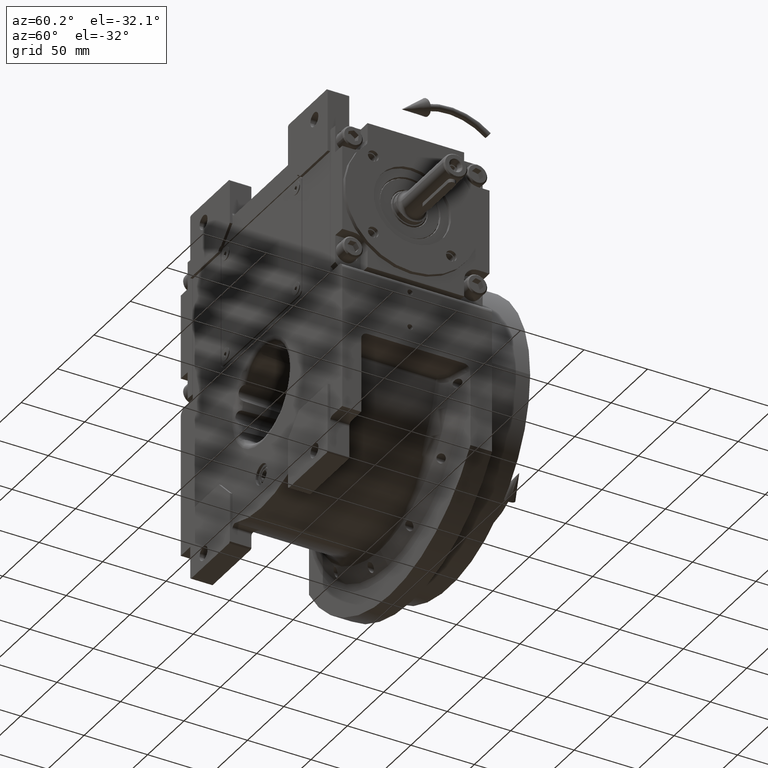
[diagram: clean part render]
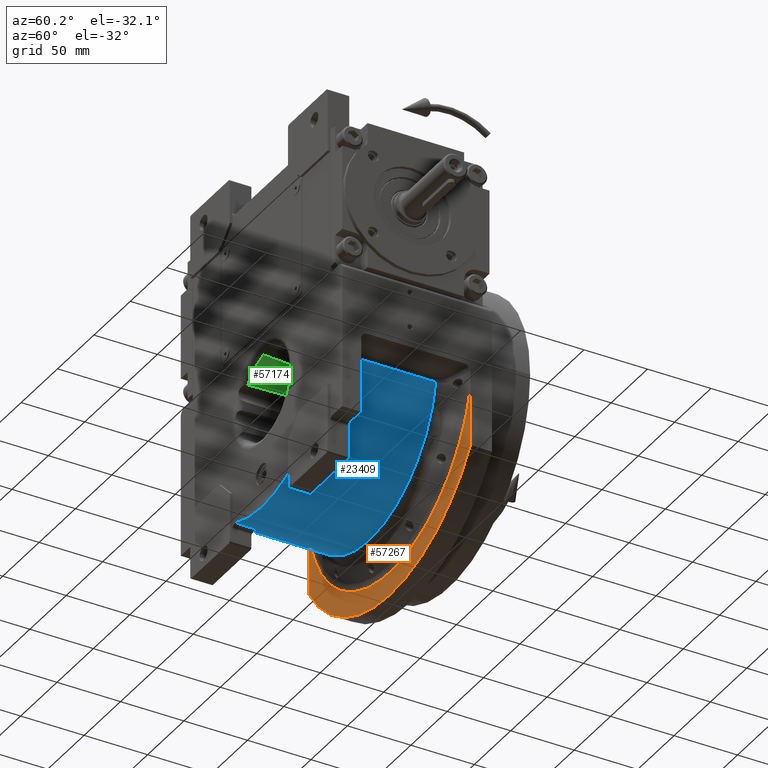
[diagram: same view with three faces highlighted in distinct colors, each labeled with its STEP entity id]
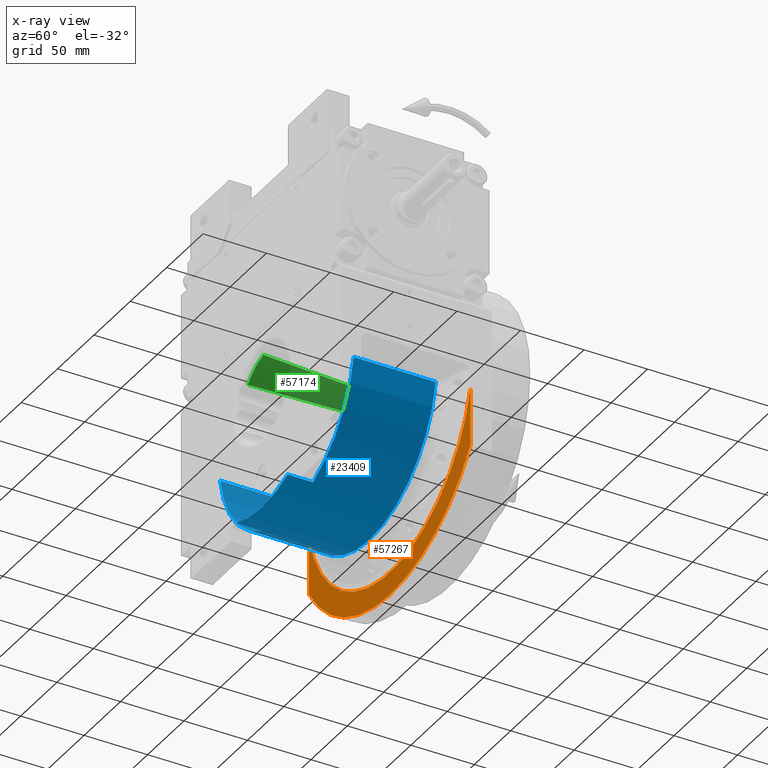
[diagram: x-ray of the same camera — body ghosted, the three highlighted faces saturated]
A machine part, auxiliary view with three faces highlighted in distinct colors.
The next image is the same camera in x-ray (body ghosted, the three faces saturated) — at least one of them is partly hidden behind the body in this view.
Their STEP definitions:

[orange] entity #57267 — the highlighted planar face has unit normal (0, -1, 0).
#757 = DIRECTION ( 'NONE',  ( -0.9747155648707268583, 0.000000000000000000, -0.2234492506112734644 ) ) ;
#4573 = CARTESIAN_POINT ( 'NONE',  ( 111.0000000000000000, 47.50000000000000000, -71.43528539874399996 ) ) ;
#5242 = DIRECTION ( 'NONE',  ( 6.180107079730629528E-16, 0.000000000000000000, 1.000000000000000000 ) ) ;
#8509 = DIRECTION ( 'NONE',  ( 0.000000000000000000, -1.000000000000000000, 0.000000000000000000 ) ) ;
#10319 = CIRCLE ( 'NONE', #40602, 131.9999999999999716 ) ;
#10460 = VERTEX_POINT ( 'NONE', #51704 ) ;
#12549 = EDGE_CURVE ( 'NONE', #67840, #21411, #16460, .T. ) ;
#14813 = AXIS2_PLACEMENT_3D ( 'NONE', #48863, #21506, #757 ) ;
#16460 = LINE ( 'NONE', #4573, #17616 ) ;
#17616 = VECTOR ( 'NONE', #5242, 1000.000000000000000 ) ;
#17643 = VERTEX_POINT ( 'NONE', #35643 ) ;
#19071 = CARTESIAN_POINT ( 'NONE',  ( 0.000000000000000000, 47.50000000000000000, 0.000000000000000000 ) ) ;
#21332 = EDGE_LOOP ( 'NONE', ( #30474, #64320, #32598, #53371 ) ) ;
#21411 = VERTEX_POINT ( 'NONE', #33863 ) ;
#21506 = DIRECTION ( 'NONE',  ( 0.000000000000000000, -1.000000000000000000, 0.000000000000000000 ) ) ;
#22954 = EDGE_CURVE ( 'NONE', #10460, #21411, #37253, .T. ) ;
#23275 = AXIS2_PLACEMENT_3D ( 'NONE', #19071, #8509, #26417 ) ;
#23319 = CARTESIAN_POINT ( 'NONE',  ( -111.0000000000000000, 47.50000000000000000, -71.43528539874399996 ) ) ;
#26417 = DIRECTION ( 'NONE',  ( 0.000000000000000000, 0.000000000000000000, 1.000000000000000000 ) ) ;
#30474 = ORIENTED_EDGE ( 'NONE', *, *, #66597, .F. ) ;
#31166 = DIRECTION ( 'NONE',  ( 0.8409090909090902732, 0.000000000000000000, -0.5411764045359401809 ) ) ;
#32598 = ORIENTED_EDGE ( 'NONE', *, *, #12549, .T. ) ;
#33159 = DIRECTION ( 'NONE',  ( 0.000000000000000000, 0.000000000000000000, 1.000000000000000000 ) ) ;
#33863 = CARTESIAN_POINT ( 'NONE',  ( 111.0000000000000000, 47.50000000000000000, -25.44626115736659955 ) ) ;
#35037 = VECTOR ( 'NONE', #33159, 1000.000000000000000 ) ;
#35643 = CARTESIAN_POINT ( 'NONE',  ( -111.0000000000000000, 47.50000000000000000, -71.43528539874399996 ) ) ;
#37253 = CIRCLE ( 'NONE', #14813, 113.8793756871230158 ) ;
#40602 = AXIS2_PLACEMENT_3D ( 'NONE', #46976, #57523, #31166 ) ;
#46976 = CARTESIAN_POINT ( 'NONE',  ( 0.000000000000000000, 47.50000000000000000, 4.263256414560599853E-14 ) ) ;
#48863 = CARTESIAN_POINT ( 'NONE',  ( -9.947598300641398816E-14, 47.50000000000000000, -5.684341886080798963E-14 ) ) ;
#49146 = EDGE_CURVE ( 'NONE', #67840, #17643, #10319, .T. ) ;
#51704 = CARTESIAN_POINT ( 'NONE',  ( -111.0000000000000000, 47.50000000000000000, -25.44626115736729588 ) ) ;
#52400 = FACE_OUTER_BOUND ( 'NONE', #21332, .T. ) ;
#53371 = ORIENTED_EDGE ( 'NONE', *, *, #22954, .F. ) ;
#55281 = LINE ( 'NONE', #23319, #35037 ) ;
#56331 = CARTESIAN_POINT ( 'NONE',  ( 111.0000000000000000, 47.50000000000000000, -71.43528539874399996 ) ) ;
#56639 = PLANE ( 'NONE',  #23275 ) ;
#57267 = ADVANCED_FACE ( 'NONE', ( #52400 ), #56639, .T. ) ;
#57523 = DIRECTION ( 'NONE',  ( 0.000000000000000000, 1.000000000000000000, 0.000000000000000000 ) ) ;
#64320 = ORIENTED_EDGE ( 'NONE', *, *, #49146, .F. ) ;
#66597 = EDGE_CURVE ( 'NONE', #17643, #10460, #55281, .T. ) ;
#67840 = VERTEX_POINT ( 'NONE', #56331 ) ;

[blue] entity #23409 — the highlighted cylindrical surface (partial cylindrical patch) has radius 93 mm, axis along (0, 1, 0).
#259 = CIRCLE ( 'NONE', #13764, 93.00000000000001421 ) ;
#941 = VERTEX_POINT ( 'NONE', #43659 ) ;
#1882 = LINE ( 'NONE', #17693, #52672 ) ;
#2418 = VERTEX_POINT ( 'NONE', #34862 ) ;
#2549 = EDGE_CURVE ( 'NONE', #6688, #941, #9221, .T. ) ;
#3184 = CARTESIAN_POINT ( 'NONE',  ( -5.684341886080798963E-14, -33.50000000000000000, -4.973799150320699408E-14 ) ) ;
#3324 = ORIENTED_EDGE ( 'NONE', *, *, #65439, .T. ) ;
#3439 = EDGE_CURVE ( 'NONE', #2418, #39345, #16285, .T. ) ;
#3520 = CIRCLE ( 'NONE', #58512, 93.00000000000001421 ) ;
#3624 = CIRCLE ( 'NONE', #13674, 93.00000000000001421 ) ;
#6688 = VERTEX_POINT ( 'NONE', #54867 ) ;
#9221 = LINE ( 'NONE', #61908, #56414 ) ;
#9292 = CARTESIAN_POINT ( 'NONE',  ( 1.421085471520200056E-14, -33.50000000000000000, 1.421085471520200056E-14 ) ) ;
#10553 = CARTESIAN_POINT ( 'NONE',  ( 1.421085471520200056E-14, 31.21878281274215183, 0.000000000000000000 ) ) ;
#10883 = CARTESIAN_POINT ( 'NONE',  ( -4.517455316885850268E-28, -53.50000000000000000, 0.000000000000000000 ) ) ;
#13087 = VECTOR ( 'NONE', #28237, 1000.000000000000000 ) ;
#13674 = AXIS2_PLACEMENT_3D ( 'NONE', #9292, #47543, #21200 ) ;
#13764 = AXIS2_PLACEMENT_3D ( 'NONE', #10553, #16160, #52709 ) ;
#15352 = ORIENTED_EDGE ( 'NONE', *, *, #21419, .T. ) ;
#16160 = DIRECTION ( 'NONE',  ( 5.743225055535190204E-15, 1.000000000000000000, 2.439003765979129920E-14 ) ) ;
#16285 = LINE ( 'NONE', #60171, #13087 ) ;
#17185 = DIRECTION ( 'NONE',  ( 0.000000000000000000, -1.000000000000000000, 0.000000000000000000 ) ) ;
#17693 = CARTESIAN_POINT ( 'NONE',  ( 91.75016228501930016, 31.21878281274199907, -15.19564808333685058 ) ) ;
#18283 = VERTEX_POINT ( 'NONE', #29425 ) ;
#19978 = EDGE_LOOP ( 'NONE', ( #29784, #47005, #3324, #42404, #37130, #15352, #39097, #36598 ) ) ;
#21200 = DIRECTION ( 'NONE',  ( 0.9865608847878558629, 0.000000000000000000, -0.1633940653959109757 ) ) ;
#21419 = EDGE_CURVE ( 'NONE', #18283, #35486, #1882, .T. ) ;
#22587 = LINE ( 'NONE', #49975, #49325 ) ;
#23409 = ADVANCED_FACE ( 'NONE', ( #43890 ), #38264, .T. ) ;
#25045 = VERTEX_POINT ( 'NONE', #35348 ) ;
#27870 = DIRECTION ( 'NONE',  ( 1.776356839400250070E-15, 1.000000000000000000, -7.105427357601000281E-16 ) ) ;
#28237 = DIRECTION ( 'NONE',  ( 0.000000000000000000, 1.000000000000000000, 0.000000000000000000 ) ) ;
#29425 = CARTESIAN_POINT ( 'NONE',  ( 91.75016228501930016, 31.21878281274259948, -15.19564808333685058 ) ) ;
#29439 = AXIS2_PLACEMENT_3D ( 'NONE', #10883, #58333, #42844 ) ;
#29784 = ORIENTED_EDGE ( 'NONE', *, *, #66735, .F. ) ;
#31876 = CARTESIAN_POINT ( 'NONE',  ( 91.75016228514499517, -33.50000000000000000, -15.19564808257825028 ) ) ;
#32997 = DIRECTION ( 'NONE',  ( -0.3854166666666672403, 0.000000000000000000, -0.9227426472508764022 ) ) ;
#33982 = CARTESIAN_POINT ( 'NONE',  ( -91.75030103113060420, 31.21878279875124917, -15.19503959111690072 ) ) ;
#34862 = CARTESIAN_POINT ( 'NONE',  ( -91.75016228508779648, -33.50000000000000000, -15.19564808292360070 ) ) ;
#35348 = CARTESIAN_POINT ( 'NONE',  ( -35.84375000000000000, -53.50000000000000000, -85.81506619433150718 ) ) ;
#35486 = VERTEX_POINT ( 'NONE', #31876 ) ;
#36598 = ORIENTED_EDGE ( 'NONE', *, *, #2549, .T. ) ;
#37130 = ORIENTED_EDGE ( 'NONE', *, *, #68493, .F. ) ;
#37910 = CARTESIAN_POINT ( 'NONE',  ( 1.421085471520200056E-14, -53.50000000000000000, -4.263256414560599853E-14 ) ) ;
#38264 = CYLINDRICAL_SURFACE ( 'NONE', #29439, 93.00000000000000000 ) ;
#38278 = AXIS2_PLACEMENT_3D ( 'NONE', #37910, #17185, #32997 ) ;
#39097 = ORIENTED_EDGE ( 'NONE', *, *, #40053, .T. ) ;
#39345 = VERTEX_POINT ( 'NONE', #33982 ) ;
#40053 = EDGE_CURVE ( 'NONE', #35486, #6688, #3624, .T. ) ;
#42404 = ORIENTED_EDGE ( 'NONE', *, *, #3439, .T. ) ;
#42844 = DIRECTION ( 'NONE',  ( 0.000000000000000000, 0.000000000000000000, 1.000000000000000000 ) ) ;
#43659 = CARTESIAN_POINT ( 'NONE',  ( 35.84375000000000000, -53.50000000000000000, -85.81506619433150718 ) ) ;
#43890 = FACE_OUTER_BOUND ( 'NONE', #19978, .T. ) ;
#44736 = DIRECTION ( 'NONE',  ( 0.000000000000000000, -1.000000000000000000, 0.000000000000000000 ) ) ;
#46367 = DIRECTION ( 'NONE',  ( -0.3854166666666659080, 0.000000000000000000, -0.9227426472508768462 ) ) ;
#47005 = ORIENTED_EDGE ( 'NONE', *, *, #63677, .T. ) ;
#47543 = DIRECTION ( 'NONE',  ( 0.000000000000000000, 1.000000000000000000, 0.000000000000000000 ) ) ;
#49325 = VECTOR ( 'NONE', #27870, 1000.000000000000000 ) ;
#49469 = CIRCLE ( 'NONE', #38278, 92.99999999999995737 ) ;
#49975 = CARTESIAN_POINT ( 'NONE',  ( -35.84375000000000000, -53.50000000000000000, -85.81506619433150718 ) ) ;
#50667 = CARTESIAN_POINT ( 'NONE',  ( -35.84375000000000000, -33.50000000000000000, -85.81506619433150718 ) ) ;
#52672 = VECTOR ( 'NONE', #44736, 1000.000000000000000 ) ;
#52709 = DIRECTION ( 'NONE',  ( 0.9865608847851539132, -1.678764654171103455E-15, -0.1633940654122239822 ) ) ;
#54867 = CARTESIAN_POINT ( 'NONE',  ( 35.84375000000000000, -33.50000000000000000, -85.81506619433150718 ) ) ;
#56414 = VECTOR ( 'NONE', #62611, 1000.000000000000000 ) ;
#57057 = VERTEX_POINT ( 'NONE', #50667 ) ;
#57280 = DIRECTION ( 'NONE',  ( 0.000000000000000000, 1.000000000000000000, 0.000000000000000000 ) ) ;
#58333 = DIRECTION ( 'NONE',  ( 0.000000000000000000, 1.000000000000000000, 0.000000000000000000 ) ) ;
#58512 = AXIS2_PLACEMENT_3D ( 'NONE', #3184, #57280, #46367 ) ;
#60171 = CARTESIAN_POINT ( 'NONE',  ( -91.75016228501930016, -33.50000000000000000, -15.19564808333695183 ) ) ;
#61908 = CARTESIAN_POINT ( 'NONE',  ( 35.84375000000000000, -33.50000000000000000, -85.81506619433150718 ) ) ;
#62611 = DIRECTION ( 'NONE',  ( 0.000000000000000000, -1.000000000000000000, 0.000000000000000000 ) ) ;
#63677 = EDGE_CURVE ( 'NONE', #25045, #57057, #22587, .T. ) ;
#65439 = EDGE_CURVE ( 'NONE', #57057, #2418, #3520, .T. ) ;
#66735 = EDGE_CURVE ( 'NONE', #25045, #941, #49469, .T. ) ;
#68493 = EDGE_CURVE ( 'NONE', #18283, #39345, #259, .T. ) ;

[green] entity #57174 — the highlighted conical surface has half-angle 2.224 deg.
#1051 = CARTESIAN_POINT ( 'NONE',  ( -25.17767317646472236, -8.134360110603740424, 22.45791745373316672 ) ) ;
#1730 = CARTESIAN_POINT ( 'NONE',  ( -25.76759777127056594, -20.19458487257341517, 22.49715182439925698 ) ) ;
#2086 = CARTESIAN_POINT ( 'NONE',  ( -24.92960939534346210, -2.830628602781669834, 22.42603774382786952 ) ) ;
#2889 = FACE_OUTER_BOUND ( 'NONE', #7322, .T. ) ;
#3512 = CARTESIAN_POINT ( 'NONE',  ( -7.015980686976826419, 0.6730493466164297889, 32.65091026506441096 ) ) ;
#3851 = CARTESIAN_POINT ( 'NONE',  ( -6.581892172300127797, -20.91873774729681301, 33.59604451296172556 ) ) ;
#4191 = CARTESIAN_POINT ( 'NONE',  ( -6.506885096314946715, -23.94214980743184285, 33.73025226889717487 ) ) ;
#4892 = CARTESIAN_POINT ( 'NONE',  ( -7.383397213329371489, 30.61457056865113557, 31.37676902628926001 ) ) ;
#5773 = CARTESIAN_POINT ( 'NONE',  ( -27.31593238095755183, -48.69402850002909844, 22.38019785351225011 ) ) ;
#6320 = AXIS2_PLACEMENT_3D ( 'NONE', #35925, #19735, #51004 ) ;
#6677 = CARTESIAN_POINT ( 'NONE',  ( -24.85035119903206535, -1.112472536648153820, 22.41432441925469021 ) ) ;
#7020 = CARTESIAN_POINT ( 'NONE',  ( -26.85700044216910598, -40.84851846064513836, 22.45959300183226404 ) ) ;
#7322 = EDGE_LOOP ( 'NONE', ( #61822, #41034, #61079, #34240 ) ) ;
#7699 = CARTESIAN_POINT ( 'NONE',  ( -24.85328262468540572, -1.176221860228127802, 22.41477066934625384 ) ) ;
#8675 = DIRECTION ( 'NONE',  ( 6.184490354042650607E-15, 1.000000000000000000, -1.077473843992298185E-14 ) ) ;
#9127 = CARTESIAN_POINT ( 'NONE',  ( -6.989352234522360874, -0.9257628673331992353, 32.72010995928752664 ) ) ;
#12292 = CARTESIAN_POINT ( 'NONE',  ( -27.31593238095755183, -48.69402850002909844, 22.38019785351225011 ) ) ;
#13611 = DIRECTION ( 'NONE',  ( -0.7234472233214667147, 1.185310840213647527E-14, 0.6903796890613598247 ) ) ;
#14384 = CARTESIAN_POINT ( 'NONE',  ( -6.614463825880844361, -19.55262967216677339, 33.53557136036147313 ) ) ;
#14601 = CARTESIAN_POINT ( 'NONE',  ( -22.86960190519749858, 46.61641710001750027, 21.82427154779684741 ) ) ;
#16981 = CARTESIAN_POINT ( 'NONE',  ( 1.065814103640149963E-14, -48.69402850002909844, 0.000000000000000000 ) ) ;
#17241 = CARTESIAN_POINT ( 'NONE',  ( -7.465572626883200336, 46.61641710001750027, 30.71779199823640027 ) ) ;
#18242 = CARTESIAN_POINT ( 'NONE',  ( -24.88848357391307076, -1.940545458994913597, 22.42005283000798954 ) ) ;
#19085 = VERTEX_POINT ( 'NONE', #5773 ) ;
#19553 = CARTESIAN_POINT ( 'NONE',  ( -5.329070518200749816E-15, 46.61641710001710237, 3.552713678800499352E-15 ) ) ;
#19630 = CARTESIAN_POINT ( 'NONE',  ( -6.717666623281026261, -15.03979163426634891, 33.33633980526321494 ) ) ;
#19735 = DIRECTION ( 'NONE',  ( 0.000000000000000000, -1.000000000000000000, 1.836909530733564901E-16 ) ) ;
#19996 = CARTESIAN_POINT ( 'NONE',  ( -6.020151598987471431, -40.89856345233415169, 34.49092710218018709 ) ) ;
#21589 = B_SPLINE_CURVE_WITH_KNOTS ( 'NONE', 3,
 ( #12292, #7020, #27742, #33722, #49846, #38964, #60755, #33008, #28435, #1730, #54782, #49160, #1051, #23148, #2086, #18242, #34057, #22801, #7699, #6677, #22464, #55138, #65329, #66032 ),
 .UNSPECIFIED., .F., .F.,
 ( 4, 2, 1, 2, 2, 1, 1, 1, 1, 1, 1, 1, 1, 1, 2, 2, 4 ),
 ( 0.000000000000000000, 0.2499999999999960032, 0.2812499999999955591, 0.2851562499999955591, 0.2890624999999955591, 0.2968749999999955036, 0.3124999999999956701, 0.3749999999999960032, 0.4374999999999963363, 0.4687499999999965028, 0.4843749999999965583, 0.4921874999999966138, 0.4960937499999966693, 0.4980468749999967248, 0.4990234374999966693, 0.4999999999999966693, 1.000000000000000000 ),
 .UNSPECIFIED. ) ;
#22235 = DIRECTION ( 'NONE',  ( 0.000000000000000000, 1.000000000000000000, 0.000000000000000000 ) ) ;
#22464 = CARTESIAN_POINT ( 'NONE',  ( -24.84883317504790412, -1.079452833632142061, 22.41409285190225376 ) ) ;
#22510 = VERTEX_POINT ( 'NONE', #14601 ) ;
#22801 = CARTESIAN_POINT ( 'NONE',  ( -24.85768018150244174, -1.271834121313870636, 22.41543876716729145 ) ) ;
#23148 = CARTESIAN_POINT ( 'NONE',  ( -25.01204819499932341, -4.605542411084015519, 22.43743319472509512 ) ) ;
#25989 = CARTESIAN_POINT ( 'NONE',  ( -6.605836467556223113, -19.91655888794579354, 33.55167512886922054 ) ) ;
#26882 = CIRCLE ( 'NONE', #40359, 35.31336033009884545 ) ;
#27742 = CARTESIAN_POINT ( 'NONE',  ( -26.42060736472807037, -32.92053605780803593, 22.49823645871132527 ) ) ;
#28435 = CARTESIAN_POINT ( 'NONE',  ( -25.80416658519532902, -20.91999557245248198, 22.49808085315071793 ) ) ;
#28835 = CONICAL_SURFACE ( 'NONE', #6320, 1.000000000000000000, 0.03881544608146950126 ) ;
#30543 = CARTESIAN_POINT ( 'NONE',  ( -6.988349161636569384, -0.9852262048118237692, 32.72268554647107663 ) ) ;
#30873 = VERTEX_POINT ( 'NONE', #64902 ) ;
#30876 = CARTESIAN_POINT ( 'NONE',  ( -6.991422968451028730, -0.8028076788874538572, 32.71478479598469136 ) ) ;
#31919 = CARTESIAN_POINT ( 'NONE',  ( -7.043924058001458377, 2.395844059239822244, 32.57645760541480939 ) ) ;
#32796 = DIRECTION ( 'NONE',  ( -0.7735296818432539911, 0.000000000000000000, 0.6337600739297750696 ) ) ;
#33008 = CARTESIAN_POINT ( 'NONE',  ( -25.82246390020075211, -21.28232574530120402, 22.49850229101428312 ) ) ;
#33722 = CARTESIAN_POINT ( 'NONE',  ( -25.95599512364559658, -23.90877444573143151, 22.50037177851915260 ) ) ;
#34057 = CARTESIAN_POINT ( 'NONE',  ( -24.86794407551523989, -1.494847327192414976, 22.41698871864194942 ) ) ;
#34240 = ORIENTED_EDGE ( 'NONE', *, *, #37513, .T. ) ;
#35820 = CARTESIAN_POINT ( 'NONE',  ( -6.600070150408666514, -20.15906628370672493, 33.56240810425131116 ) ) ;
#35925 = CARTESIAN_POINT ( 'NONE',  ( 0.000000000000000000, 834.8749999998768772, -1.415119829553997709E-13 ) ) ;
#37513 = EDGE_CURVE ( 'NONE', #19085, #22510, #21589, .T. ) ;
#38964 = CARTESIAN_POINT ( 'NONE',  ( -25.84112447787023825, -21.65130370048159492, 22.49889461834812820 ) ) ;
#40359 = AXIS2_PLACEMENT_3D ( 'NONE', #16981, #22235, #32796 ) ;
#41034 = ORIENTED_EDGE ( 'NONE', *, *, #43900, .T. ) ;
#41071 = CARTESIAN_POINT ( 'NONE',  ( -6.668683843327299243, -17.24455031828429341, 33.43349931018661181 ) ) ;
#41438 = CARTESIAN_POINT ( 'NONE',  ( -5.723853692384750502, -48.69402850002909844, 34.84639029672330679 ) ) ;
#41590 = AXIS2_PLACEMENT_3D ( 'NONE', #19553, #8675, #13611 ) ;
#42103 = CARTESIAN_POINT ( 'NONE',  ( -7.097539557566140189, 5.844536192231387872, 32.42777577455985494 ) ) ;
#42457 = CARTESIAN_POINT ( 'NONE',  ( -7.218778195337935522, 14.73565036317008570, 32.04721890751191893 ) ) ;
#43900 = EDGE_CURVE ( 'NONE', #45381, #30873, #57110, .T. ) ;
#45381 = VERTEX_POINT ( 'NONE', #17241 ) ;
#46339 = CARTESIAN_POINT ( 'NONE',  ( -7.001723833722601320, -0.1879601712271008751, 32.68816393540910781 ) ) ;
#46673 = CARTESIAN_POINT ( 'NONE',  ( -7.465572626883200336, 46.61641710001750027, 30.71779199823640027 ) ) ;
#47047 = CARTESIAN_POINT ( 'NONE',  ( -6.842704596624226809, -9.117395876313956649, 33.07622035125862681 ) ) ;
#47700 = EDGE_CURVE ( 'NONE', #22510, #45381, #62913, .T. ) ;
#49160 = CARTESIAN_POINT ( 'NONE',  ( -25.41640791755143880, -13.11549991824473516, 22.48053801942943863 ) ) ;
#49846 = CARTESIAN_POINT ( 'NONE',  ( -25.89832868074435268, -22.78085453470795585, 22.49999219110493343 ) ) ;
#51004 = DIRECTION ( 'NONE',  ( 0.000000000000000000, 0.000000000000000000, 1.000000000000000000 ) ) ;
#51960 = CARTESIAN_POINT ( 'NONE',  ( -6.597009251911162941, -20.28739144563655472, 33.56808874989616953 ) ) ;
#52287 = CARTESIAN_POINT ( 'NONE',  ( -6.918618852143947784, -5.111746348028315623, 32.90143907804457513 ) ) ;
#54782 = CARTESIAN_POINT ( 'NONE',  ( -25.63379664472327235, -17.52649174368558604, 22.49279951270645839 ) ) ;
#55138 = CARTESIAN_POINT ( 'NONE',  ( -24.12397273183305302, 14.69085707344197900, 22.30330539787410515 ) ) ;
#57110 = B_SPLINE_CURVE_WITH_KNOTS ( 'NONE', 3,
 ( #46673, #62509, #4892, #69144, #42457, #57251, #42103, #31919, #3512, #46339, #67777, #30876, #9127, #30543, #52287, #47047, #19630, #41071, #14384, #25989, #35820, #51960, #3851, #68127, #4191, #68486, #19996, #41438 ),
 .UNSPECIFIED., .F., .F.,
 ( 4, 2, 2, 1, 1, 1, 1, 1, 2, 2, 2, 1, 1, 2, 2, 1, 2, 4 ),
 ( 0.000000000000000000, 0.2500000000000021094, 0.3750000000000031641, 0.4375000000000036637, 0.4687500000000039413, 0.4843750000000041078, 0.4921875000000041633, 0.4960937500000041633, 0.4980468750000042188, 0.5000000000000042188, 0.6250000000000043299, 0.6875000000000044409, 0.6953125000000044409, 0.6992187500000044409, 0.7031250000000044409, 0.7187500000000043299, 0.7500000000000037748, 1.000000000000000000 ),
 .UNSPECIFIED. ) ;
#57174 = ADVANCED_FACE ( 'NONE', ( #2889 ), #28835, .F. ) ;
#57251 = CARTESIAN_POINT ( 'NONE',  ( -7.139636768700242442, 8.805876948072151933, 32.30073330044628221 ) ) ;
#60755 = CARTESIAN_POINT ( 'NONE',  ( -25.82842384740889230, -21.40025213427811934, 22.49863301333086696 ) ) ;
#61079 = ORIENTED_EDGE ( 'NONE', *, *, #63670, .F. ) ;
#61822 = ORIENTED_EDGE ( 'NONE', *, *, #47700, .T. ) ;
#62509 = CARTESIAN_POINT ( 'NONE',  ( -7.436494824040673635, 38.59658209189029066, 31.04537517040879635 ) ) ;
#62913 = CIRCLE ( 'NONE', #41590, 31.61198380194111124 ) ;
#63670 = EDGE_CURVE ( 'NONE', #19085, #30873, #26882, .T. ) ;
#64902 = CARTESIAN_POINT ( 'NONE',  ( -5.723853692384750502, -48.69402850002909844, 34.84639029672330679 ) ) ;
#65329 = CARTESIAN_POINT ( 'NONE',  ( -23.46596071509765835, 30.57923326970892575, 22.10146558095334157 ) ) ;
#66032 = CARTESIAN_POINT ( 'NONE',  ( -22.86960190519749858, 46.61641710001750027, 21.82427154779684741 ) ) ;
#67777 = CARTESIAN_POINT ( 'NONE',  ( -6.994523957334219055, -0.6183679705321875053, 32.70679752970342946 ) ) ;
#68127 = CARTESIAN_POINT ( 'NONE',  ( -6.545123414946812268, -22.43255883371456960, 33.66314325872906466 ) ) ;
#68486 = CARTESIAN_POINT ( 'NONE',  ( -6.271527082534446684, -32.98277519893132137, 34.13290973774196146 ) ) ;
#69144 = CARTESIAN_POINT ( 'NONE',  ( -7.264801888010843811, 18.69828851112387724, 31.87897152083906605 ) ) ;